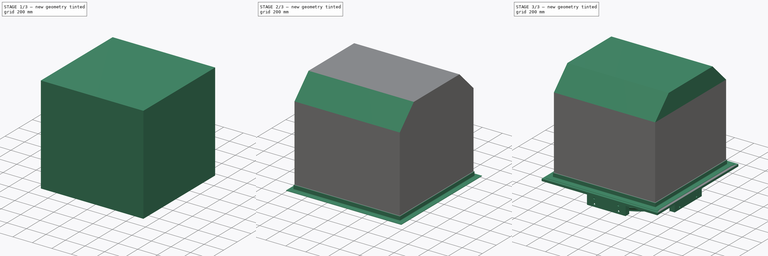
[diagram: build sequence overview — one tinted view per stage of 3, left to right]
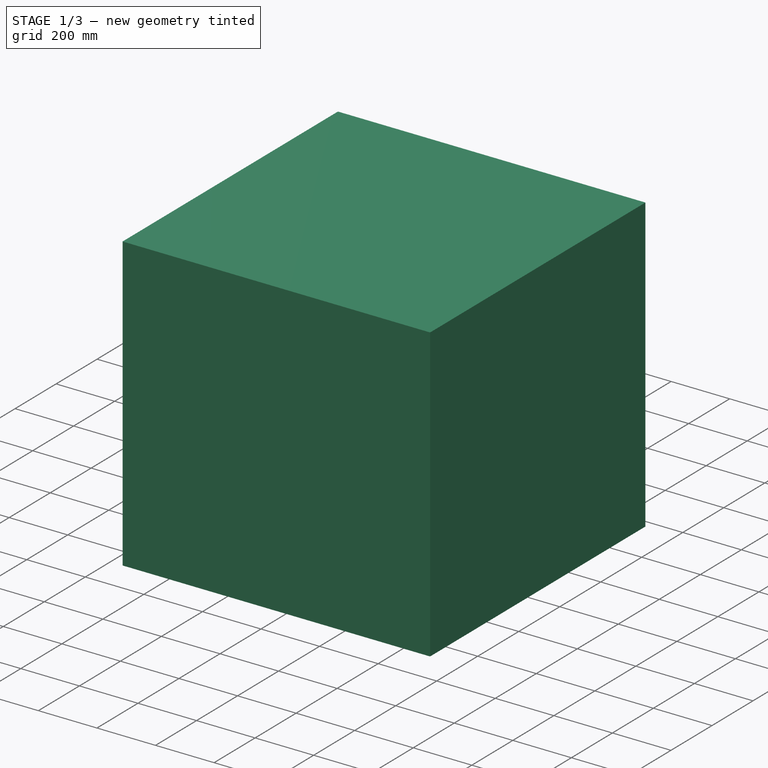
[diagram: stage 1 of 3 — iso view after this stage's code; geometry added in this stage tinted green]
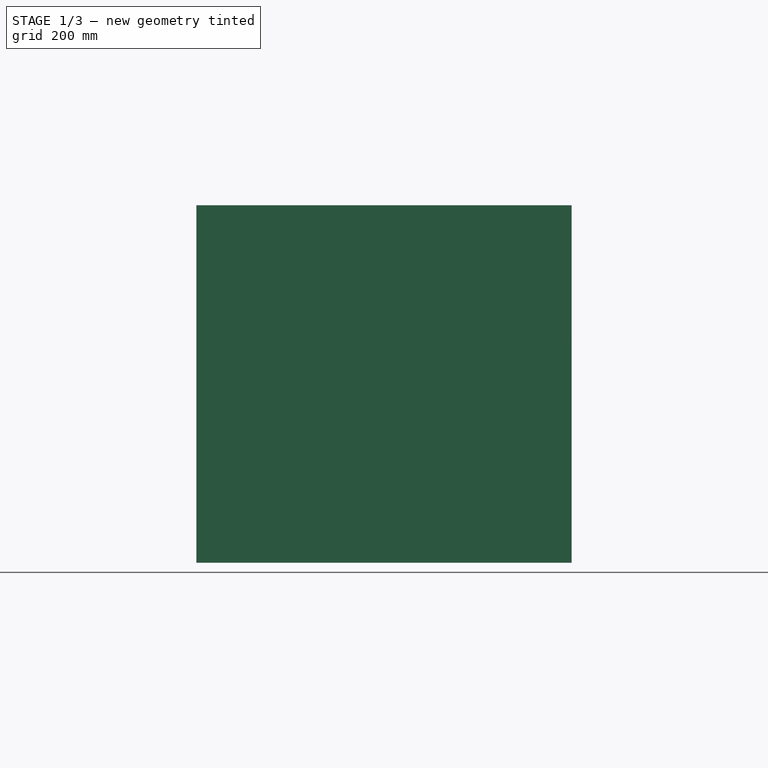
[diagram: stage 1 of 3 — front view after this stage's code; geometry added in this stage tinted green]
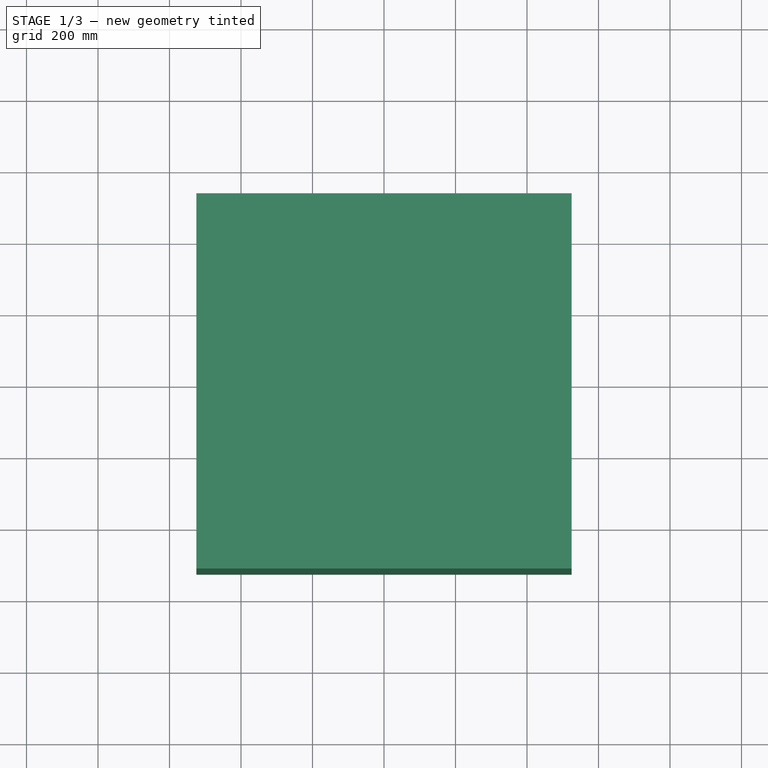
[diagram: stage 1 of 3 — top view after this stage's code; geometry added in this stage tinted green]
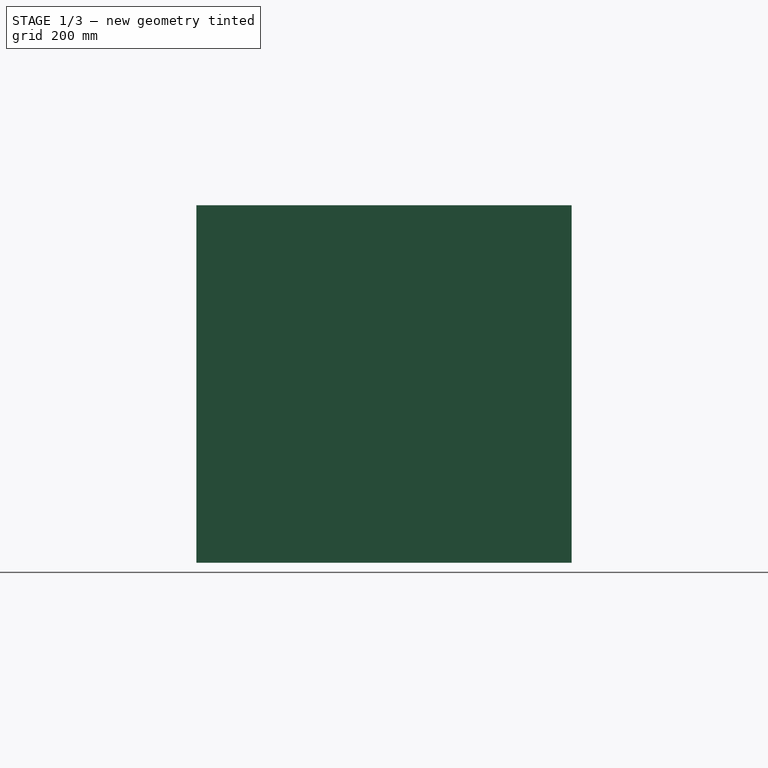
[diagram: stage 1 of 3 — right view after this stage's code; geometry added in this stage tinted green]
FCSTD DOCUMENT  (FreeCAD 1.0R39109 (Git))
Label: drivePart_P
License: All rights reserved
LicenseURL: https://en.wikipedia.org/wiki/All_rights_reserved
objects: Part::Feature×5, Sketcher::SketchObject×2, PartDesign::Pad×1, Part::Compound×1, Part::FeaturePython×1, Part::Chamfer×1, PartDesign::Thickness×1, Part::Sweep×1, Part::MultiFuse×1, App::Part×1
note: 20 computed .brp shape members not serialized (recipe doc carries the construction recipe); baked Part::Feature solids carry a one-line shape summary decoded from their .brp

FEATURE [Part::Feature] Part__Feature  label="50A30_() v1"
  Placement = pos=(162.912,-280.358,517.02) rot=(0,0,1;1.57038rad)
  shape: bbox 162.2 x 50.03 x 161.7 mm, 187 faces (baked)
FEATURE [Part::Feature] Part__Feature001  label="CNHM05-609-A10 v2"
  Placement = pos=(272.819,-129.883,800) rot=(0,0,1;1.5708rad)
  shape: bbox 203.5 x 337.5 x 183 mm, 1357 faces (baked)
FEATURE [Part::Feature] Part__Feature002  label="K50B21_() v1"
  Placement = pos=(322.235,-280.393,797.172) rot=(0,0,1;1.5708rad)
  shape: bbox 116.2 x 45.19 x 116.5 mm, 132 faces (baked)
FEATURE [Part::Feature] Part__Feature003  label="\X2\30C130A730F330AB30D030FC\X0\ v2"
  Placement = pos=(162.903,-331.008,517.02) rot=(0,0,1;0rad)
  shape: bbox 430 x 100 x 545 mm, 11 faces (baked)
FEATURE [Part::Feature] Part__Feature004  label="COMPOUND"
  shape: bbox 1200 x 1200 x 697.2 mm, 243 faces, 4 solids (baked)
FEATURE [Sketcher::SketchObject] Sketch
  ArcFitTolerance = 1e-06
  FullyConstrained = true
  MakeInternals = false
  MapMode = 5
  sketch-geometry (5):
    g0: LineSegment StartX=525 StartY=525 StartZ=0 EndX=-525 EndY=525 EndZ=0
    g1: LineSegment StartX=-525 StartY=525 StartZ=0 EndX=-525 EndY=-525 EndZ=0
    g2: LineSegment StartX=-525 StartY=-525 StartZ=0 EndX=525 EndY=-525 EndZ=0
    g3: LineSegment StartX=525 StartY=-525 StartZ=0 EndX=525 EndY=525 EndZ=0
    g4: GeomPoint [constr] X=0 Y=0 Z=0
  constraints (12):
    c: Coincident(g0,g1)
    c: Coincident(g1,g2)
    c: Coincident(g2,g3)
    c: Coincident(g3,g0)
    c: Horizontal(g0)
    c: Horizontal(g2)
    c: Vertical(g1)
    c: Vertical(g3)
    c: Symmetric(g2,g0,g4)
    c: Coincident(g4,g-1)
    c: DistanceX(g0,g0) = 1050
    c: DistanceY(g3,g3) = 1050
FEATURE [PartDesign::Pad] Pad
  Direction = (0,0,1)
  Length = 1000
  Length2 = 10
  Profile = -> Sketch
  ReferenceAxis = -> Sketch [N_Axis]
  Suppressed = false
  Type = 0
FEATURE [PartDesign::Thickness] Thickness
  Base = -> Pad [Face5]
  BaseFeature = -> Pad
  Intersection = false
  Join = 0
  Mode = 0
  Reversed = true
  SupportTransform = false
  Suppressed = false
  Value = 3
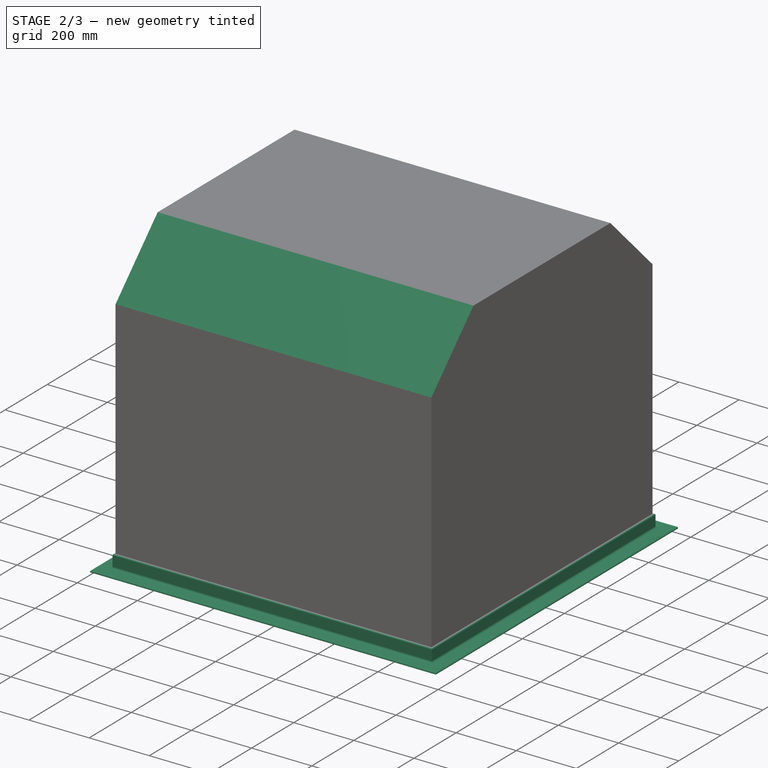
[diagram: stage 2 of 3 — iso view after this stage's code; geometry added in this stage tinted green]
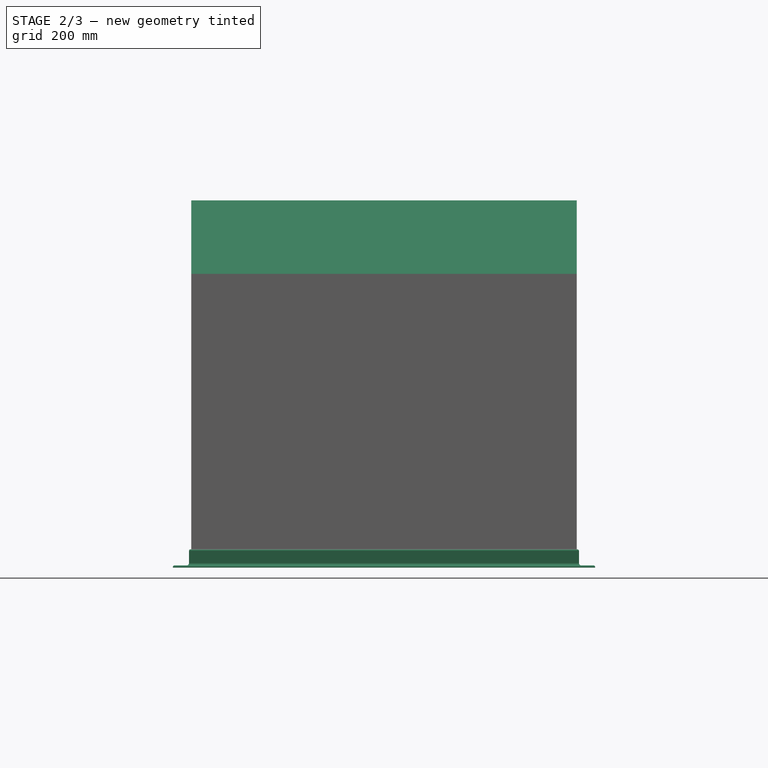
[diagram: stage 2 of 3 — front view after this stage's code; geometry added in this stage tinted green]
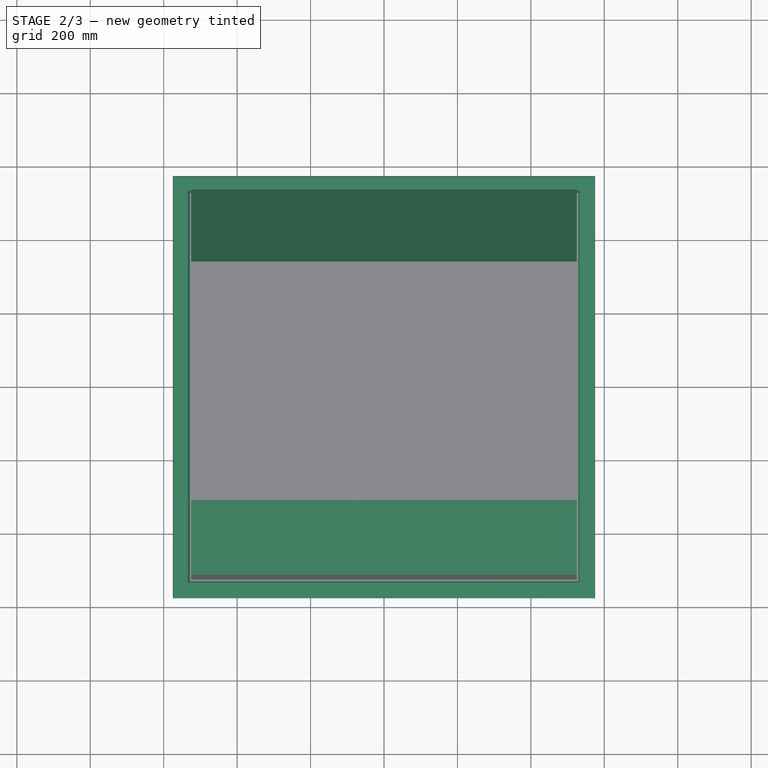
[diagram: stage 2 of 3 — top view after this stage's code; geometry added in this stage tinted green]
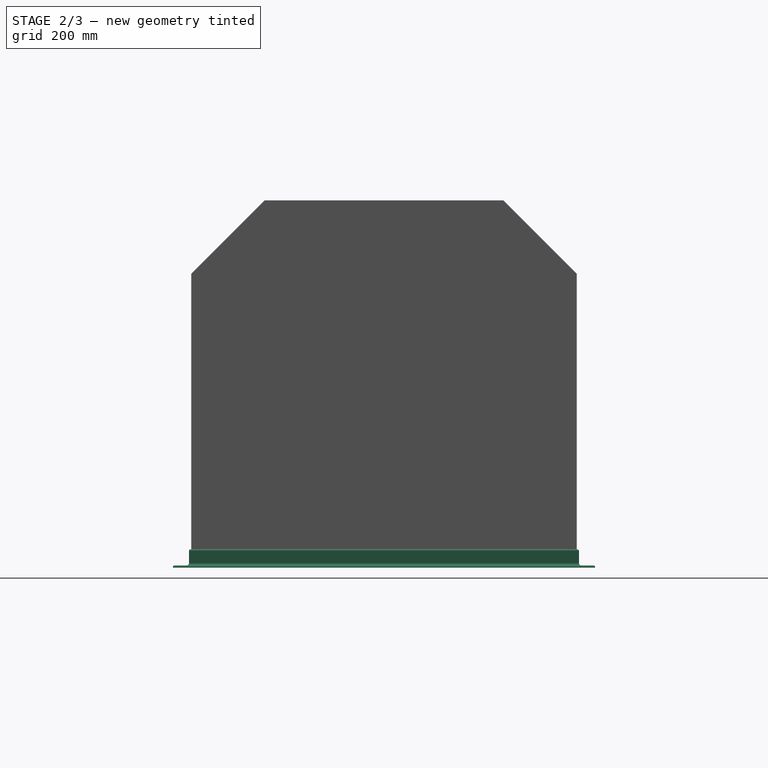
[diagram: stage 2 of 3 — right view after this stage's code; geometry added in this stage tinted green]
FEATURE [Part::FeaturePython] AngleSteel  # WARN: FeaturePython — macro-defined, semantics opaque (R4)
  A = 50
  B = 50
  L = 5500
  Placement = pos=(525,0,0) rot=(0,0,1;0rad)
  Solid = false
  g0 = 7.85
  mass = 0
  size = 7
  standard = SS_Equal
  t = 6
  type = 00_Angle
FEATURE [Part::Chamfer] Chamfer
  Base = -> Pad
  EdgeLinks = -> Pad [Edge4,Edge10]
  Edges = 2 edges r=200: [Edge4,Edge10]
FEATURE [Sketcher::SketchObject] Sketch001
  ArcFitTolerance = 1e-06
  AttachmentSupport = -> [XY_Plane]
  ExternalGeometry = -> [Thickness]
  FullyConstrained = true
  MakeInternals = false
  MapMode = 5
  sketch-geometry (5):
    g0: LineSegment StartX=525 StartY=525 StartZ=0 EndX=-525 EndY=525 EndZ=0
    g1: LineSegment StartX=-525 StartY=525 StartZ=0 EndX=-525 EndY=-525 EndZ=0
    g2: LineSegment StartX=-525 StartY=-525 StartZ=0 EndX=525 EndY=-525 EndZ=0
    g3: LineSegment StartX=525 StartY=-525 StartZ=0 EndX=525 EndY=525 EndZ=0
    g4: GeomPoint [constr] X=0 Y=0 Z=0
  constraints (12):
    c: Coincident(g0,g1)
    c: Coincident(g1,g2)
    c: Coincident(g2,g3)
    c: Coincident(g3,g0)
    c: Horizontal(g0)
    c: Horizontal(g2)
    c: Vertical(g1)
    c: Vertical(g3)
    c: Symmetric(g2,g0,g4)
    c: Coincident(g4,g-1)
    c: DistanceX(g2,g2) = 1050
    c: DistanceY(g3,g3) = 1050
FEATURE [Part::Sweep] Sweep
  Frenet = true
  Sections = -> [AngleSteel]
  Solid = true
  Spine = -> Sketch001 [Edge4,Edge1,Edge2,Edge3]
  Transition = 1
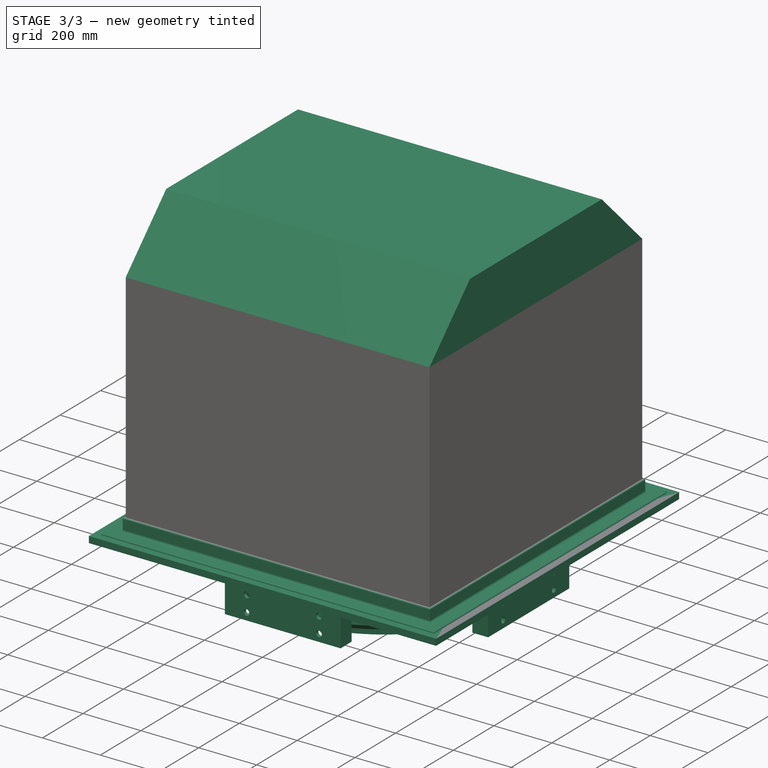
[diagram: stage 3 of 3 — iso view after this stage's code; geometry added in this stage tinted green]
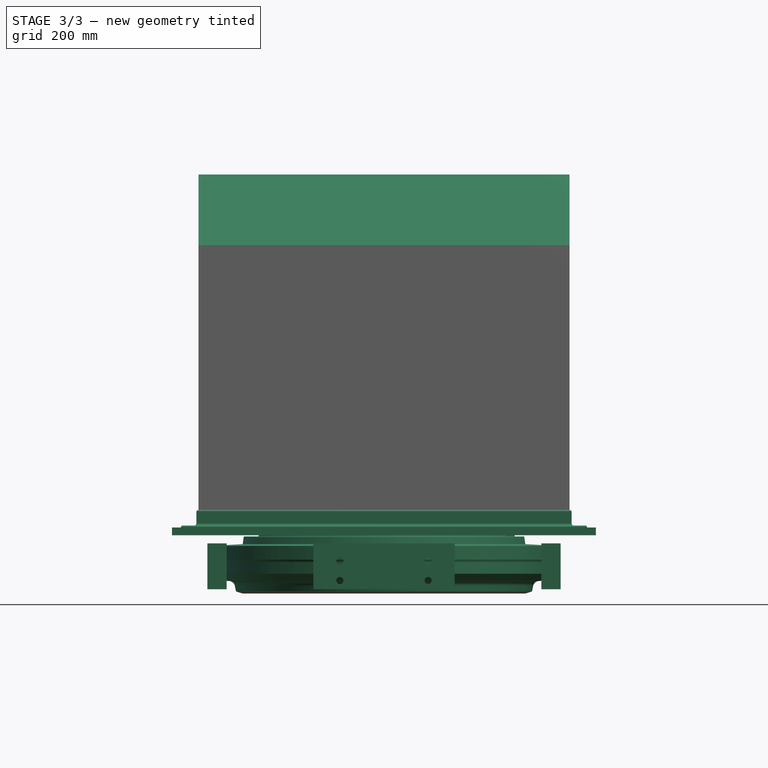
[diagram: stage 3 of 3 — front view after this stage's code; geometry added in this stage tinted green]
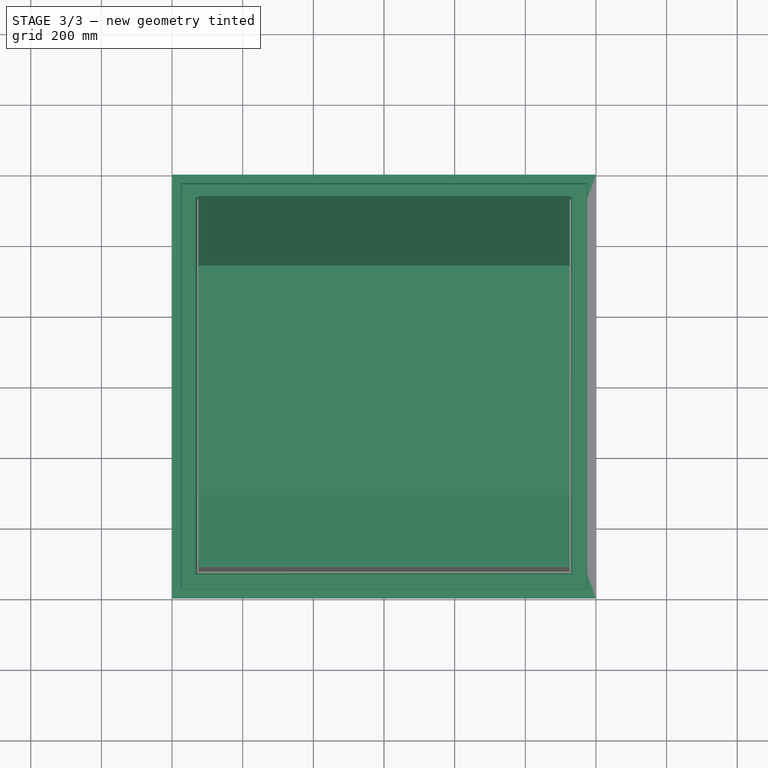
[diagram: stage 3 of 3 — top view after this stage's code; geometry added in this stage tinted green]
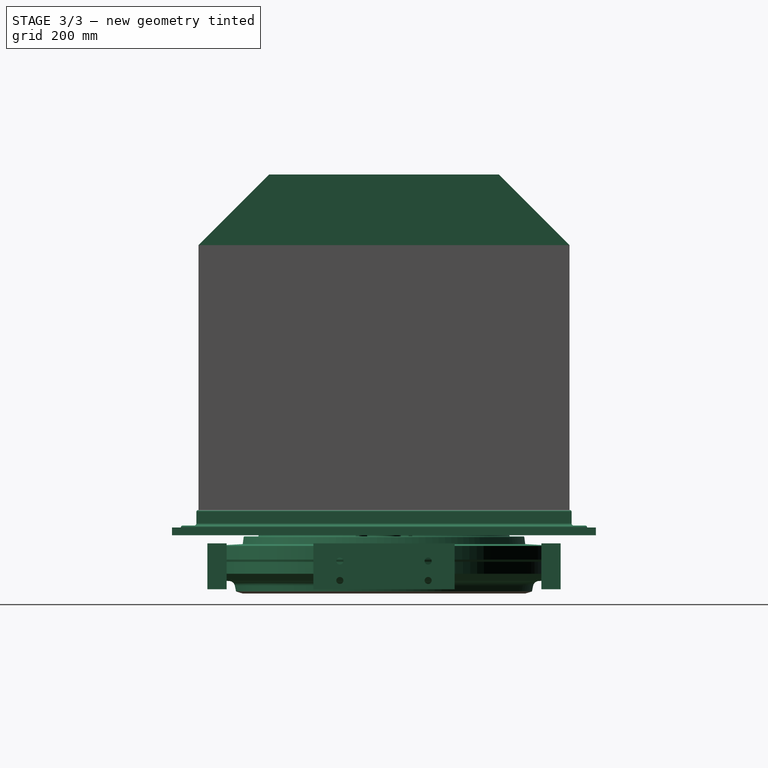
[diagram: stage 3 of 3 — right view after this stage's code; geometry added in this stage tinted green]
FEATURE [Part::Compound] Compound  label="driveUnit"
  Links = -> [Part__Feature,Part__Feature001,Part__Feature002,Part__Feature003,Part__Feature004]
FEATURE [Part::MultiFuse] Fusion
  Placement = pos=(0,0,186.5) rot=(0,0,1;0rad)
  Shapes = -> [Sweep,Chamfer]
FEATURE [App::Part] _X2_99C652D590E8_X0__NSD05_v20  label="drivePart_P"
  Group = -> [Part__Feature,Part__Feature001,Part__Feature002,Part__Feature003,Part__Feature004,Compound,Sweep,Chamfer,Sketch001,Sketch,Thickness,AngleSteel,Pad,Fusion]
  Origin = -> Origin
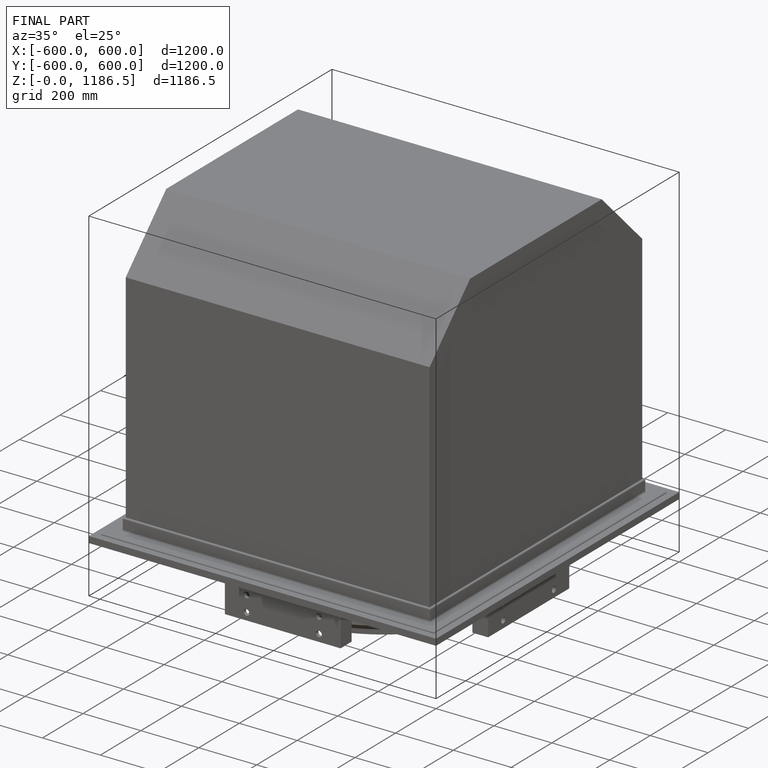
[diagram: finished part — iso view with bounding-box wireframe]
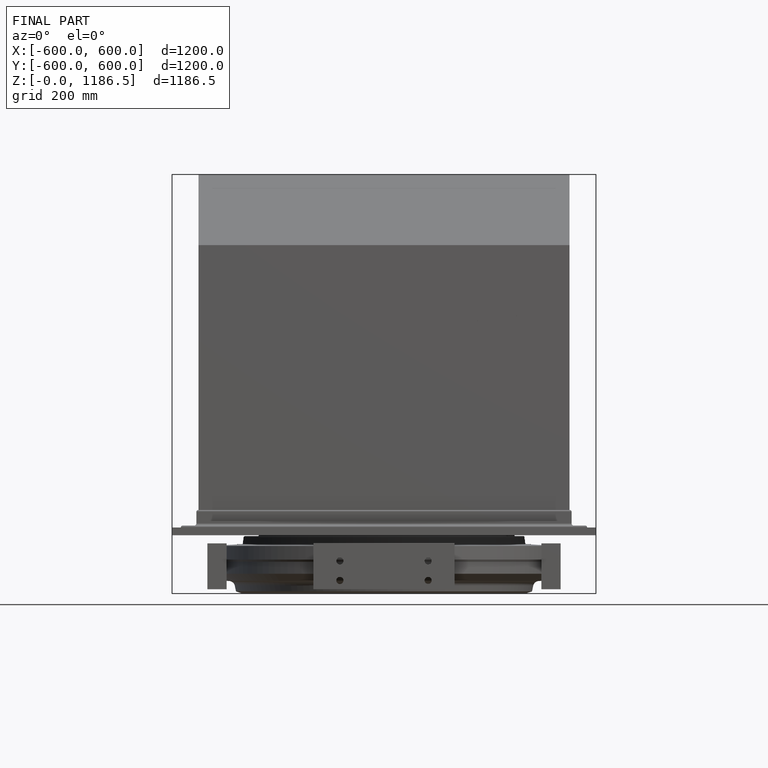
[diagram: finished part — front view with bounding-box wireframe]
